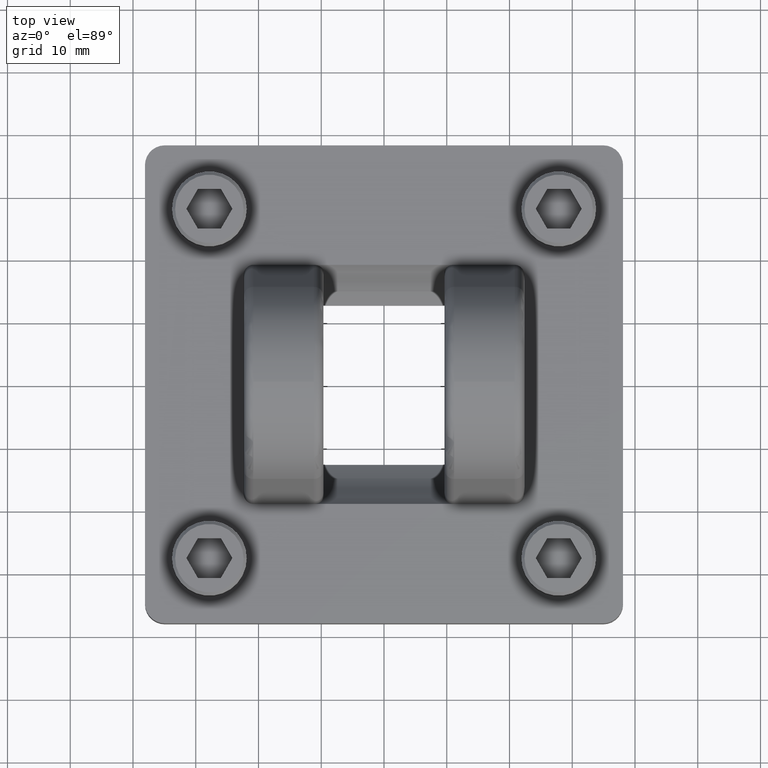
[diagram: clean part render]
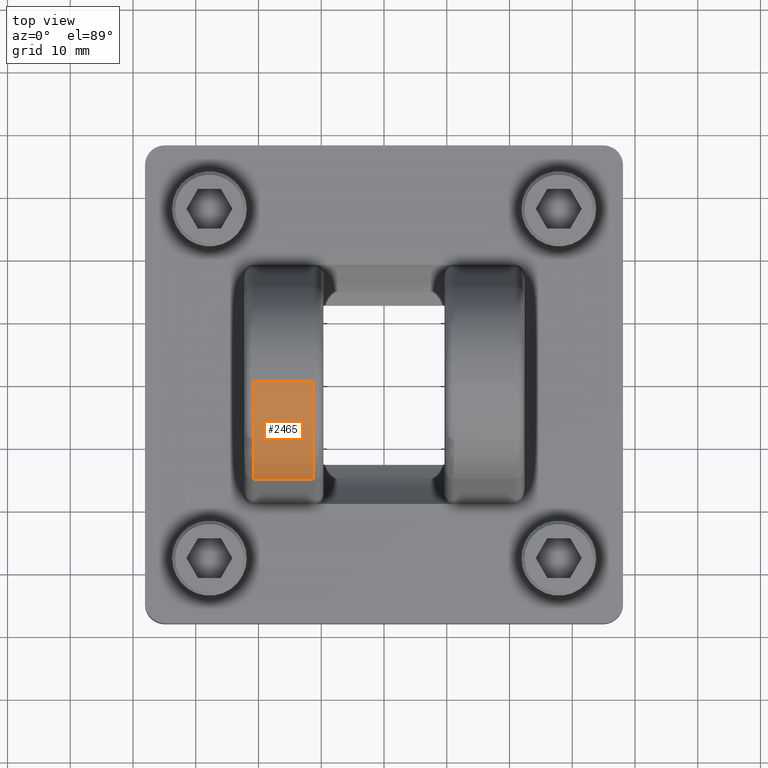
[diagram: same view with one face highlighted and labeled with its STEP entity id]
A machine part, top view. The second image highlights one B-rep face of the part: STEP entity #2465.
In plain terms, the highlighted cylindrical surface (partial cylindrical patch) has radius 15.875 mm, axis along (-1, -0, -0).
Its self-contained STEP definition (entity closure, byte-faithful):
#17 = EDGE_LOOP ( 'NONE', ( #2820, #2800, #2034, #1334 ) ) ;
#111 = EDGE_CURVE ( 'NONE', #182, #1639, #1987, .T. ) ;
#182 = VERTEX_POINT ( 'NONE', #2133 ) ;
#243 = CARTESIAN_POINT ( 'NONE',  ( 0.8800000000000000044, -1.024442997624098707E-16, 0.7499999999999998890 ) ) ;
#269 = DIRECTION ( 'NONE',  ( -1.000000000000000000, -0.0000000000000000000, -0.0000000000000000000 ) ) ;
#793 = VERTEX_POINT ( 'NONE', #3474 ) ;
#846 = VERTEX_POINT ( 'NONE', #1389 ) ;
#963 = AXIS2_PLACEMENT_3D ( 'NONE', #2791, #2272, #1397 ) ;
#1113 = CARTESIAN_POINT ( 'NONE',  ( 0.8800000000000000044, -1.024442997624098707E-16, 1.375000000000000000 ) ) ;
#1155 = LINE ( 'NONE', #2294, #3049 ) ;
#1218 = DIRECTION ( 'NONE',  ( -1.000000000000000000, -0.0000000000000000000, -0.0000000000000000000 ) ) ;
#1277 = CYLINDRICAL_SURFACE ( 'NONE', #2364, 0.6250000000000000000 ) ;
#1334 = ORIENTED_EDGE ( 'NONE', *, *, #1354, .F. ) ;
#1354 = EDGE_CURVE ( 'NONE', #793, #846, #1155, .T. ) ;
#1389 = CARTESIAN_POINT ( 'NONE',  ( -0.8199999999999998401, -0.6030056647916491874, 0.9143446629166315232 ) ) ;
#1397 = DIRECTION ( 'NONE',  ( 0.0000000000000000000, 0.0000000000000000000, -1.000000000000000000 ) ) ;
#1580 = DIRECTION ( 'NONE',  ( 0.0000000000000000000, 0.0000000000000000000, 1.000000000000000000 ) ) ;
#1639 = VERTEX_POINT ( 'NONE', #1985 ) ;
#1985 = CARTESIAN_POINT ( 'NONE',  ( -0.8199999999999998401, -1.024442997624098707E-16, 1.375000000000000000 ) ) ;
#1987 = LINE ( 'NONE', #1113, #3581 ) ;
#2034 = ORIENTED_EDGE ( 'NONE', *, *, #2121, .T. ) ;
#2121 = EDGE_CURVE ( 'NONE', #1639, #846, #2565, .T. ) ;
#2133 = CARTESIAN_POINT ( 'NONE',  ( -0.4400000000000001132, -1.024442997624098707E-16, 1.375000000000000000 ) ) ;
#2272 = DIRECTION ( 'NONE',  ( 1.000000000000000000, -0.0000000000000000000, 0.0000000000000000000 ) ) ;
#2294 = CARTESIAN_POINT ( 'NONE',  ( 0.8800000000000000044, -0.6030056647916491874, 0.9143446629166315232 ) ) ;
#2364 = AXIS2_PLACEMENT_3D ( 'NONE', #243, #2455, #1580 ) ;
#2450 = AXIS2_PLACEMENT_3D ( 'NONE', #3451, #1218, #3230 ) ;
#2455 = DIRECTION ( 'NONE',  ( -1.000000000000000000, -0.0000000000000000000, -0.0000000000000000000 ) ) ;
#2465 = ADVANCED_FACE ( 'NONE', ( #2747 ), #1277, .T. ) ;
#2565 = CIRCLE ( 'NONE', #963, 0.6250000000000000000 ) ;
#2747 = FACE_OUTER_BOUND ( 'NONE', #17, .T. ) ;
#2791 = CARTESIAN_POINT ( 'NONE',  ( -0.8199999999999998401, -1.024442997624098707E-16, 0.7499999999999998890 ) ) ;
#2800 = ORIENTED_EDGE ( 'NONE', *, *, #111, .T. ) ;
#2820 = ORIENTED_EDGE ( 'NONE', *, *, #3573, .T. ) ;
#3049 = VECTOR ( 'NONE', #269, 39.37007874015748143 ) ;
#3076 = DIRECTION ( 'NONE',  ( -1.000000000000000000, -0.0000000000000000000, -0.0000000000000000000 ) ) ;
#3124 = CIRCLE ( 'NONE', #2450, 0.6250000000000000000 ) ;
#3230 = DIRECTION ( 'NONE',  ( 0.0000000000000000000, 0.0000000000000000000, -1.000000000000000000 ) ) ;
#3451 = CARTESIAN_POINT ( 'NONE',  ( -0.4400000000000001132, -1.024442997624098707E-16, 0.7499999999999998890 ) ) ;
#3474 = CARTESIAN_POINT ( 'NONE',  ( -0.4400000000000001132, -0.6030056647916491874, 0.9143446629166315232 ) ) ;
#3573 = EDGE_CURVE ( 'NONE', #793, #182, #3124, .T. ) ;
#3581 = VECTOR ( 'NONE', #3076, 39.37007874015748143 ) ;